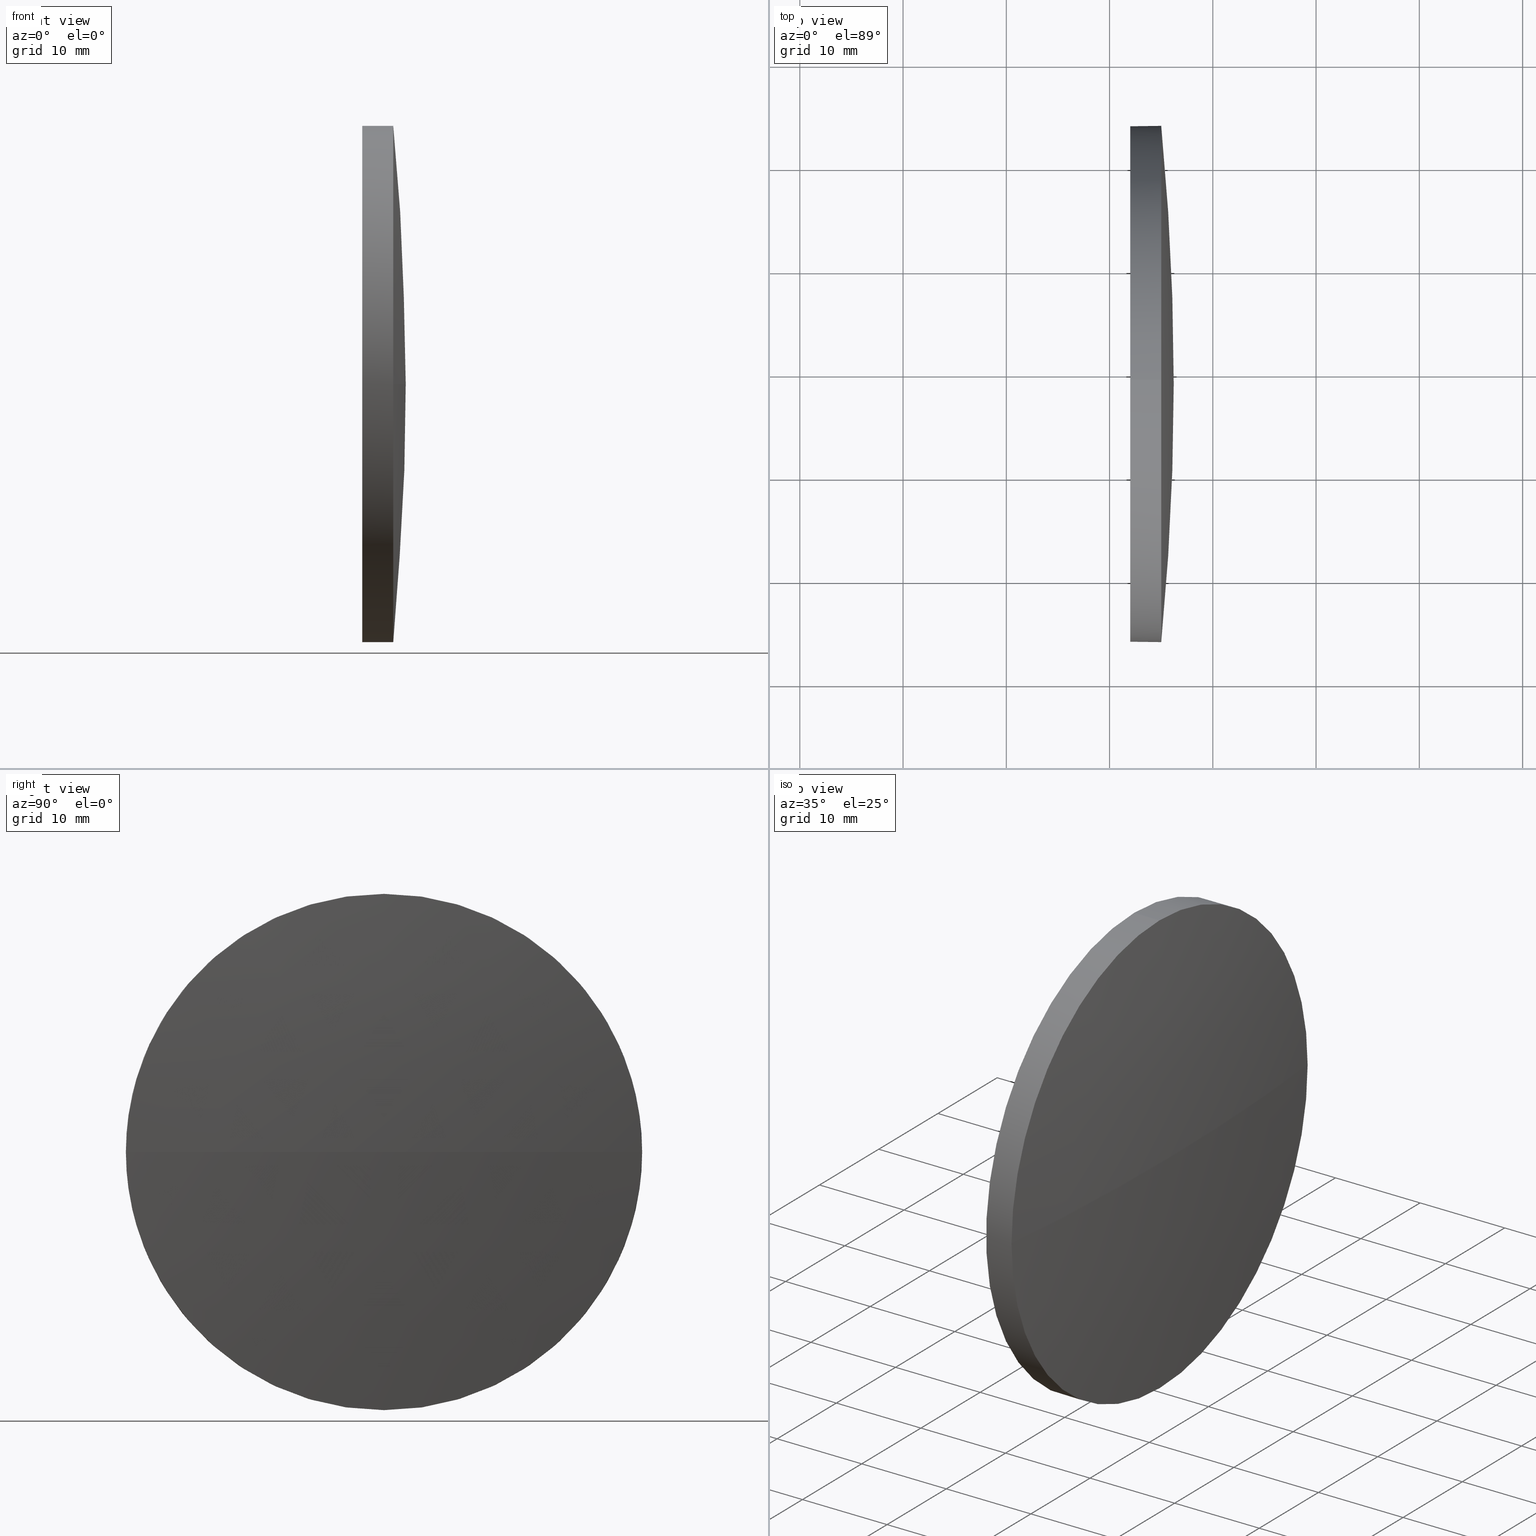
[diagram: canonical four-view strip — front | top / right | iso, engineering-drawing reading convention]
A machine part, canonical four-view strip (front | top / right | iso — engineering-drawing reading convention). The complete STEP part file that produces these views, byte-faithful:
ISO-10303-21;
HEADER;
FILE_DESCRIPTION (( 'STEP AP214' ),
    '1' );
FILE_NAME ('100157.STEP',
    '2019-05-16T02:56:25',
    ( '' ),
    ( '' ),
    'SwSTEP 2.0',
    'SolidWorks 2016',
    '' );
FILE_SCHEMA (( 'AUTOMOTIVE_DESIGN' ));
ENDSEC;

DATA;
#1 = DIRECTION ( 'NONE',  ( -1.000000000000000000, -0.0000000000000000000, -0.0000000000000000000 ) ) ;
#2 = DIRECTION ( 'NONE',  ( -1.000000000000000000, -0.0000000000000000000, -0.0000000000000000000 ) ) ;
#3 = EDGE_CURVE ( 'NONE', #51, #167, #170, .T. ) ;
#4 = CARTESIAN_POINT ( 'NONE',  ( 462.0046362820362400, 88.87131801322505000, 25.00000000000000700 ) ) ;
#5 = SURFACE_SIDE_STYLE ('',( #54 ) ) ;
#6 = PRESENTATION_LAYER_ASSIGNMENT (  '', '', ( #62 ) ) ;
#7 = DIRECTION ( 'NONE',  ( 0.0000000000000000000, 0.0000000000000000000, -1.000000000000000000 ) ) ;
#8 = CARTESIAN_POINT ( 'NONE',  ( 465.0046362820362400, 63.87131801322501400, -3.061616997868380300E-015 ) ) ;
#9 = CIRCLE ( 'NONE', #99, 25.00000000000000700 ) ;
#10 = EDGE_CURVE ( 'NONE', #184, #167, #181, .T. ) ;
#11 = ADVANCED_FACE ( 'NONE', ( #112 ), #30, .F. ) ;
#12 = AXIS2_PLACEMENT_3D ( 'NONE', #26, #126, #169 ) ;
#13 = AXIS2_PLACEMENT_3D ( 'NONE', #74, #2, #104 ) ;
#14 = DIRECTION ( 'NONE',  ( 0.0000000000000000000, 0.0000000000000000000, 1.000000000000000000 ) ) ;
#15 = DIRECTION ( 'NONE',  ( 0.0000000000000000000, 0.0000000000000000000, 1.000000000000000000 ) ) ;
#16 = PRESENTATION_STYLE_ASSIGNMENT (( #95 ) ) ;
#17 = FILL_AREA_STYLE_COLOUR ( '', #164 ) ;
#18 = DIRECTION ( 'NONE',  ( 0.0000000000000000000, 1.000000000000000000, 0.0000000000000000000 ) ) ;
#19 = FILL_AREA_STYLE ('',( #102 ) ) ;
#20 = PRESENTATION_STYLE_ASSIGNMENT (( #58 ) ) ;
#21 =( NAMED_UNIT ( * ) PLANE_ANGLE_UNIT ( ) SI_UNIT ( $, .RADIAN. ) );
#22 = CIRCLE ( 'NONE', #36, 25.00000000000000700 ) ;
#23 = ORIENTED_EDGE ( 'NONE', *, *, #156, .F. ) ;
#24 = AXIS2_PLACEMENT_3D ( 'NONE', #154, #179, #7 ) ;
#25 = FACE_OUTER_BOUND ( 'NONE', #79, .T. ) ;
#26 = CARTESIAN_POINT ( 'NONE',  ( 207.3451734721176100, 88.87131801322499300, 0.0000000000000000000 ) ) ;
#27 = CIRCLE ( 'NONE', #91, 258.8694628099186200 ) ;
#28 = CARTESIAN_POINT ( 'NONE',  ( 465.0046362820362400, 113.8713180132250400, 0.0000000000000000000 ) ) ;
#29 = STYLED_ITEM ( 'NONE', ( #20 ), #175 ) ;
#30 = PLANE ( 'NONE',  #24 ) ;
#31 = CARTESIAN_POINT ( 'NONE',  ( 465.0046362820362400, 88.87131801322505000, 0.0000000000000000000 ) ) ;
#32 = COLOUR_RGB ( '',1.000000000000000000, 1.000000000000000000, 1.000000000000000000 ) ;
#33 =( GEOMETRIC_REPRESENTATION_CONTEXT ( 3 ) GLOBAL_UNCERTAINTY_ASSIGNED_CONTEXT ( ( #46 ) ) GLOBAL_UNIT_ASSIGNED_CONTEXT ( ( #73, #118, #131 ) ) REPRESENTATION_CONTEXT ( 'NONE', 'WORKASPACE' ) );
#34 = DIRECTION ( 'NONE',  ( 0.0000000000000000000, 1.000000000000000000, 1.224646799147353500E-016 ) ) ;
#35 = ADVANCED_FACE ( 'NONE', ( #25 ), #57, .T. ) ;
#36 = AXIS2_PLACEMENT_3D ( 'NONE', #31, #103, #133 ) ;
#37 = ORIENTED_EDGE ( 'NONE', *, *, #3, .T. ) ;
#38 =( NAMED_UNIT ( * ) SI_UNIT ( $, .STERADIAN. ) SOLID_ANGLE_UNIT ( ) );
#39 = FACE_OUTER_BOUND ( 'NONE', #137, .T. ) ;
#40 = VERTEX_POINT ( 'NONE', #28 ) ;
#41 = ORIENTED_EDGE ( 'NONE', *, *, #132, .F. ) ;
#42 = VECTOR ( 'NONE', #124, 1000.000000000000000 ) ;
#43 = AXIS2_PLACEMENT_3D ( 'NONE', #163, #77, #34 ) ;
#44 = CIRCLE ( 'NONE', #129, 25.00000000000000700 ) ;
#45 = DIRECTION ( 'NONE',  ( -1.000000000000000000, -0.0000000000000000000, -0.0000000000000000000 ) ) ;
#46 = UNCERTAINTY_MEASURE_WITH_UNIT (LENGTH_MEASURE( 1.000000000000000100E-005 ), #73, 'distance_accuracy_value', 'NONE');
#47 =( LENGTH_UNIT ( ) NAMED_UNIT ( * ) SI_UNIT ( .MILLI., .METRE. ) );
#48 = CIRCLE ( 'NONE', #13, 25.00000000000000700 ) ;
#49 = DIRECTION ( 'NONE',  ( 1.000000000000000000, 0.0000000000000000000, 0.0000000000000000000 ) ) ;
#50 = UNCERTAINTY_MEASURE_WITH_UNIT (LENGTH_MEASURE( 1.000000000000000100E-005 ), #93, 'distance_accuracy_value', 'NONE');
#51 = VERTEX_POINT ( 'NONE', #151 ) ;
#52 = AXIS2_PLACEMENT_3D ( 'NONE', #120, #106, #88 ) ;
#53 = PRODUCT ( '100157', '100157', '', ( #109 ) ) ;
#54 = SURFACE_STYLE_FILL_AREA ( #19 ) ;
#55 = CIRCLE ( 'NONE', #43, 258.8694628099186200 ) ;
#56 = DIRECTION ( 'NONE',  ( 0.0000000000000000000, 0.0000000000000000000, 1.000000000000000000 ) ) ;
#57 = SPHERICAL_SURFACE ( 'NONE', #12, 258.8694628099186200 ) ;
#58 = SURFACE_STYLE_USAGE ( .BOTH. , #159 ) ;
#59 = CLOSED_SHELL ( 'NONE', ( #183, #128, #35, #149, #11 ) ) ;
#60 = CARTESIAN_POINT ( 'NONE',  ( 466.2146362820362200, 88.87131801322500700, 0.0000000000000000000 ) ) ;
#61 = ORIENTED_EDGE ( 'NONE', *, *, #123, .T. ) ;
#62 = STYLED_ITEM ( 'NONE', ( #16 ), #134 ) ;
#63 = CARTESIAN_POINT ( 'NONE',  ( 0.0000000000000000000, 0.0000000000000000000, 0.0000000000000000000 ) ) ;
#64 = ORIENTED_EDGE ( 'NONE', *, *, #123, .F. ) ;
#65 = APPLICATION_CONTEXT ( 'automotive_design' ) ;
#66 = VERTEX_POINT ( 'NONE', #8 ) ;
#67 = AXIS2_PLACEMENT_3D ( 'NONE', #101, #162, #18 ) ;
#68 = PRODUCT_RELATED_PRODUCT_CATEGORY ( 'part', '', ( #53 ) ) ;
#69 = CARTESIAN_POINT ( 'NONE',  ( 457.8596245327955800, 88.87131801322505000, 25.00000000000000700 ) ) ;
#70 = ORIENTED_EDGE ( 'NONE', *, *, #71, .F. ) ;
#71 = EDGE_CURVE ( 'NONE', #66, #184, #22, .T. ) ;
#72 = ORIENTED_EDGE ( 'NONE', *, *, #3, .F. ) ;
#73 =( LENGTH_UNIT ( ) NAMED_UNIT ( * ) SI_UNIT ( .MILLI., .METRE. ) );
#74 = CARTESIAN_POINT ( 'NONE',  ( 465.0046362820362400, 88.87131801322505000, 0.0000000000000000000 ) ) ;
#75 = DIRECTION ( 'NONE',  ( 0.0000000000000000000, 0.0000000000000000000, 1.000000000000000000 ) ) ;
#76 = ORIENTED_EDGE ( 'NONE', *, *, #71, .T. ) ;
#77 = DIRECTION ( 'NONE',  ( 0.0000000000000000000, 1.224646799147353200E-016, -1.000000000000000000 ) ) ;
#78 = AXIS2_PLACEMENT_3D ( 'NONE', #148, #45, #176 ) ;
#79 = EDGE_LOOP ( 'NONE', ( #90, #114, #160, #70 ) ) ;
#80 = APPLICATION_PROTOCOL_DEFINITION ( 'draft international standard', 'automotive_design', 1998, #110 ) ;
#81 = CYLINDRICAL_SURFACE ( 'NONE', #78, 25.00000000000000700 ) ;
#82 = EDGE_CURVE ( 'NONE', #115, #66, #55, .T. ) ;
#83 = CARTESIAN_POINT ( 'NONE',  ( 462.0046362820362400, 88.87131801322505000, 0.0000000000000000000 ) ) ;
#84 = ORIENTED_EDGE ( 'NONE', *, *, #141, .T. ) ;
#85 = DIRECTION ( 'NONE',  ( -1.000000000000000000, -0.0000000000000000000, -0.0000000000000000000 ) ) ;
#86 = PRODUCT_DEFINITION_SHAPE ( 'NONE', 'NONE',  #116 ) ;
#87 = DIRECTION ( 'NONE',  ( -0.0000000000000000000, 0.0000000000000000000, 1.000000000000000000 ) ) ;
#88 = DIRECTION ( 'NONE',  ( 0.0000000000000000000, 0.0000000000000000000, 1.000000000000000000 ) ) ;
#89 = FACE_OUTER_BOUND ( 'NONE', #139, .T. ) ;
#90 = ORIENTED_EDGE ( 'NONE', *, *, #82, .F. ) ;
#91 = AXIS2_PLACEMENT_3D ( 'NONE', #117, #87, #150 ) ;
#92 = DIRECTION ( 'NONE',  ( 0.0000000000000000000, 0.0000000000000000000, 1.000000000000000000 ) ) ;
#93 =( LENGTH_UNIT ( ) NAMED_UNIT ( * ) SI_UNIT ( .MILLI., .METRE. ) );
#94 = CYLINDRICAL_SURFACE ( 'NONE', #152, 25.00000000000000700 ) ;
#95 = SURFACE_STYLE_USAGE ( .BOTH. , #5 ) ;
#96 = EDGE_CURVE ( 'NONE', #40, #142, #158, .T. ) ;
#97 = LINE ( 'NONE', #182, #144 ) ;
#98 = EDGE_LOOP ( 'NONE', ( #146, #37 ) ) ;
#99 = AXIS2_PLACEMENT_3D ( 'NONE', #171, #174, #56 ) ;
#100 = ORIENTED_EDGE ( 'NONE', *, *, #82, .T. ) ;
#101 = CARTESIAN_POINT ( 'NONE',  ( 207.3451734721176100, 88.87131801322499300, 0.0000000000000000000 ) ) ;
#102 = FILL_AREA_STYLE_COLOUR ( '', #32 ) ;
#103 = DIRECTION ( 'NONE',  ( -1.000000000000000000, -0.0000000000000000000, -0.0000000000000000000 ) ) ;
#104 = DIRECTION ( 'NONE',  ( 0.0000000000000000000, 0.0000000000000000000, 1.000000000000000000 ) ) ;
#105 = EDGE_LOOP ( 'NONE', ( #41, #100, #140, #130 ) ) ;
#106 = DIRECTION ( 'NONE',  ( -1.000000000000000000, -0.0000000000000000000, -0.0000000000000000000 ) ) ;
#107 = MECHANICAL_DESIGN_GEOMETRIC_PRESENTATION_REPRESENTATION (  '', ( #29 ), #33 ) ;
#108 = AXIS2_PLACEMENT_3D ( 'NONE', #63, #92, #49 ) ;
#109 = PRODUCT_CONTEXT ( 'NONE', #65, 'mechanical' ) ;
#110 = APPLICATION_CONTEXT ( 'automotive_design' ) ;
#111 = SHAPE_DEFINITION_REPRESENTATION ( #86, #134 ) ;
#112 = FACE_OUTER_BOUND ( 'NONE', #98, .T. ) ;
#113 = ORIENTED_EDGE ( 'NONE', *, *, #10, .T. ) ;
#114 = ORIENTED_EDGE ( 'NONE', *, *, #132, .T. ) ;
#115 = VERTEX_POINT ( 'NONE', #60 ) ;
#116 = PRODUCT_DEFINITION ( 'δ֪', '', #180, #143 ) ;
#117 = CARTESIAN_POINT ( 'NONE',  ( 207.3451734721176100, 88.87131801322499300, 0.0000000000000000000 ) ) ;
#118 =( NAMED_UNIT ( * ) PLANE_ANGLE_UNIT ( ) SI_UNIT ( $, .RADIAN. ) );
#119 = MECHANICAL_DESIGN_GEOMETRIC_PRESENTATION_REPRESENTATION (  '', ( #62 ), #135 ) ;
#120 = CARTESIAN_POINT ( 'NONE',  ( 465.0046362820362400, 88.87131801322505000, 0.0000000000000000000 ) ) ;
#121 = CARTESIAN_POINT ( 'NONE',  ( 465.0046362820362400, 88.87131801322505000, -25.00000000000000700 ) ) ;
#122 = CARTESIAN_POINT ( 'NONE',  ( 465.0046362820362400, 88.87131801322505000, 25.00000000000000700 ) ) ;
#123 = EDGE_CURVE ( 'NONE', #142, #51, #97, .T. ) ;
#124 = DIRECTION ( 'NONE',  ( -1.000000000000000000, -0.0000000000000000000, -0.0000000000000000000 ) ) ;
#125 =( GEOMETRIC_REPRESENTATION_CONTEXT ( 3 ) GLOBAL_UNCERTAINTY_ASSIGNED_CONTEXT ( ( #50 ) ) GLOBAL_UNIT_ASSIGNED_CONTEXT ( ( #93, #21, #38 ) ) REPRESENTATION_CONTEXT ( 'NONE', 'WORKASPACE' ) );
#126 = DIRECTION ( 'NONE',  ( -0.0000000000000000000, 0.0000000000000000000, -1.000000000000000000 ) ) ;
#127 = ORIENTED_EDGE ( 'NONE', *, *, #96, .T. ) ;
#128 = ADVANCED_FACE ( 'NONE', ( #172 ), #155, .T. ) ;
#129 = AXIS2_PLACEMENT_3D ( 'NONE', #173, #1, #75 ) ;
#130 = ORIENTED_EDGE ( 'NONE', *, *, #96, .F. ) ;
#131 =( NAMED_UNIT ( * ) SI_UNIT ( $, .STERADIAN. ) SOLID_ANGLE_UNIT ( ) );
#132 = EDGE_CURVE ( 'NONE', #115, #40, #27, .T. ) ;
#133 = DIRECTION ( 'NONE',  ( 0.0000000000000000000, 0.0000000000000000000, 1.000000000000000000 ) ) ;
#134 = ADVANCED_BREP_SHAPE_REPRESENTATION ( '100157', ( #175, #108 ), #125 ) ;
#135 =( GEOMETRIC_REPRESENTATION_CONTEXT ( 3 ) GLOBAL_UNCERTAINTY_ASSIGNED_CONTEXT ( ( #168 ) ) GLOBAL_UNIT_ASSIGNED_CONTEXT ( ( #47, #153, #165 ) ) REPRESENTATION_CONTEXT ( 'NONE', 'WORKASPACE' ) );
#136 = SURFACE_STYLE_FILL_AREA ( #147 ) ;
#137 = EDGE_LOOP ( 'NONE', ( #64, #84, #76, #113, #72 ) ) ;
#138 = PRESENTATION_LAYER_ASSIGNMENT (  '', '', ( #29 ) ) ;
#139 = EDGE_LOOP ( 'NONE', ( #127, #61, #23, #177, #185 ) ) ;
#140 = ORIENTED_EDGE ( 'NONE', *, *, #141, .F. ) ;
#141 = EDGE_CURVE ( 'NONE', #142, #66, #9, .T. ) ;
#142 = VERTEX_POINT ( 'NONE', #121 ) ;
#143 = PRODUCT_DEFINITION_CONTEXT ( 'detailed design', #110, 'design' ) ;
#144 = VECTOR ( 'NONE', #157, 1000.000000000000000 ) ;
#145 = CARTESIAN_POINT ( 'NONE',  ( 457.8596245327955800, 88.87131801322505000, 0.0000000000000000000 ) ) ;
#146 = ORIENTED_EDGE ( 'NONE', *, *, #156, .T. ) ;
#147 = FILL_AREA_STYLE ('',( #17 ) ) ;
#148 = CARTESIAN_POINT ( 'NONE',  ( 457.8596245327955800, 88.87131801322505000, 0.0000000000000000000 ) ) ;
#149 = ADVANCED_FACE ( 'NONE', ( #39 ), #94, .T. ) ;
#150 = DIRECTION ( 'NONE',  ( 1.000000000000000000, 0.0000000000000000000, 0.0000000000000000000 ) ) ;
#151 = CARTESIAN_POINT ( 'NONE',  ( 462.0046362820362400, 88.87131801322505000, -25.00000000000000700 ) ) ;
#152 = AXIS2_PLACEMENT_3D ( 'NONE', #145, #186, #15 ) ;
#153 =( NAMED_UNIT ( * ) PLANE_ANGLE_UNIT ( ) SI_UNIT ( $, .RADIAN. ) );
#154 = CARTESIAN_POINT ( 'NONE',  ( 462.0046362820362400, 88.87131801322505000, 0.0000000000000000000 ) ) ;
#155 = SPHERICAL_SURFACE ( 'NONE', #67, 258.8694628099186200 ) ;
#156 = EDGE_CURVE ( 'NONE', #167, #51, #44, .T. ) ;
#157 = DIRECTION ( 'NONE',  ( -1.000000000000000000, -0.0000000000000000000, -0.0000000000000000000 ) ) ;
#158 = CIRCLE ( 'NONE', #52, 25.00000000000000700 ) ;
#159 = SURFACE_SIDE_STYLE ('',( #136 ) ) ;
#160 = ORIENTED_EDGE ( 'NONE', *, *, #178, .F. ) ;
#161 = AXIS2_PLACEMENT_3D ( 'NONE', #83, #85, #14 ) ;
#162 = DIRECTION ( 'NONE',  ( -0.0000000000000000000, 0.0000000000000000000, -1.000000000000000000 ) ) ;
#163 = CARTESIAN_POINT ( 'NONE',  ( 207.3451734721176100, 88.87131801322499300, 0.0000000000000000000 ) ) ;
#164 = COLOUR_RGB ( '',1.000000000000000000, 1.000000000000000000, 1.000000000000000000 ) ;
#165 =( NAMED_UNIT ( * ) SI_UNIT ( $, .STERADIAN. ) SOLID_ANGLE_UNIT ( ) );
#166 = APPLICATION_PROTOCOL_DEFINITION ( 'draft international standard', 'automotive_design', 1998, #65 ) ;
#167 = VERTEX_POINT ( 'NONE', #4 ) ;
#168 = UNCERTAINTY_MEASURE_WITH_UNIT (LENGTH_MEASURE( 1.000000000000000100E-005 ), #47, 'distance_accuracy_value', 'NONE');
#169 = DIRECTION ( 'NONE',  ( 0.0000000000000000000, 1.000000000000000000, 0.0000000000000000000 ) ) ;
#170 = CIRCLE ( 'NONE', #161, 25.00000000000000700 ) ;
#171 = CARTESIAN_POINT ( 'NONE',  ( 465.0046362820362400, 88.87131801322505000, 0.0000000000000000000 ) ) ;
#172 = FACE_OUTER_BOUND ( 'NONE', #105, .T. ) ;
#173 = CARTESIAN_POINT ( 'NONE',  ( 462.0046362820362400, 88.87131801322505000, 0.0000000000000000000 ) ) ;
#174 = DIRECTION ( 'NONE',  ( -1.000000000000000000, -0.0000000000000000000, -0.0000000000000000000 ) ) ;
#175 = MANIFOLD_SOLID_BREP ( '��ת1', #59 ) ;
#176 = DIRECTION ( 'NONE',  ( 0.0000000000000000000, 0.0000000000000000000, 1.000000000000000000 ) ) ;
#177 = ORIENTED_EDGE ( 'NONE', *, *, #10, .F. ) ;
#178 = EDGE_CURVE ( 'NONE', #184, #40, #48, .T. ) ;
#179 = DIRECTION ( 'NONE',  ( 1.000000000000000000, 0.0000000000000000000, 0.0000000000000000000 ) ) ;
#180 = PRODUCT_DEFINITION_FORMATION_WITH_SPECIFIED_SOURCE ( '�κ�', '', #53, .NOT_KNOWN. ) ;
#181 = LINE ( 'NONE', #69, #42 ) ;
#182 = CARTESIAN_POINT ( 'NONE',  ( 457.8596245327955800, 88.87131801322505000, -25.00000000000000700 ) ) ;
#183 = ADVANCED_FACE ( 'NONE', ( #89 ), #81, .T. ) ;
#184 = VERTEX_POINT ( 'NONE', #122 ) ;
#185 = ORIENTED_EDGE ( 'NONE', *, *, #178, .T. ) ;
#186 = DIRECTION ( 'NONE',  ( -1.000000000000000000, -0.0000000000000000000, -0.0000000000000000000 ) ) ;
ENDSEC;
END-ISO-10303-21;
